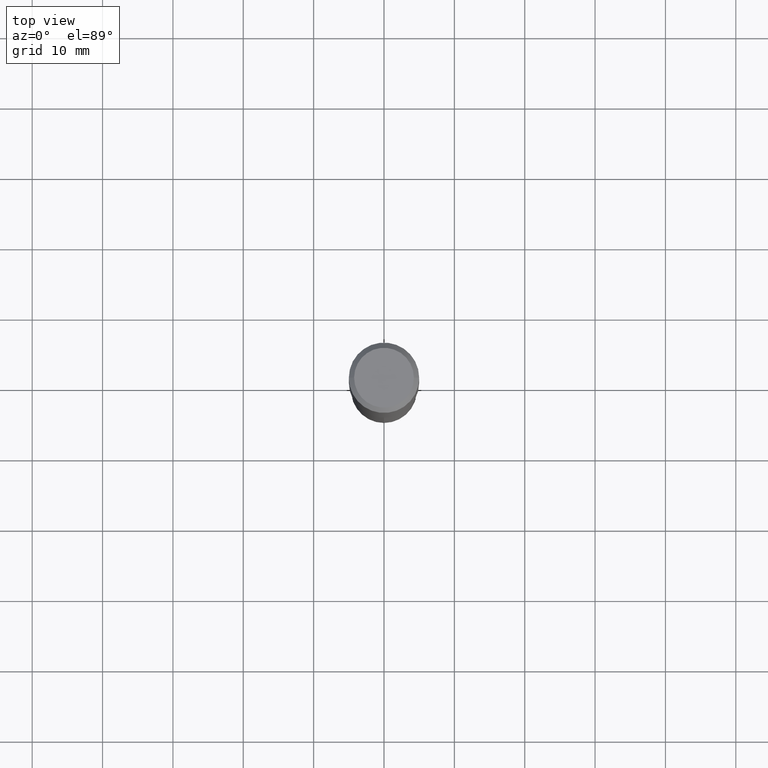
[diagram: clean part render]
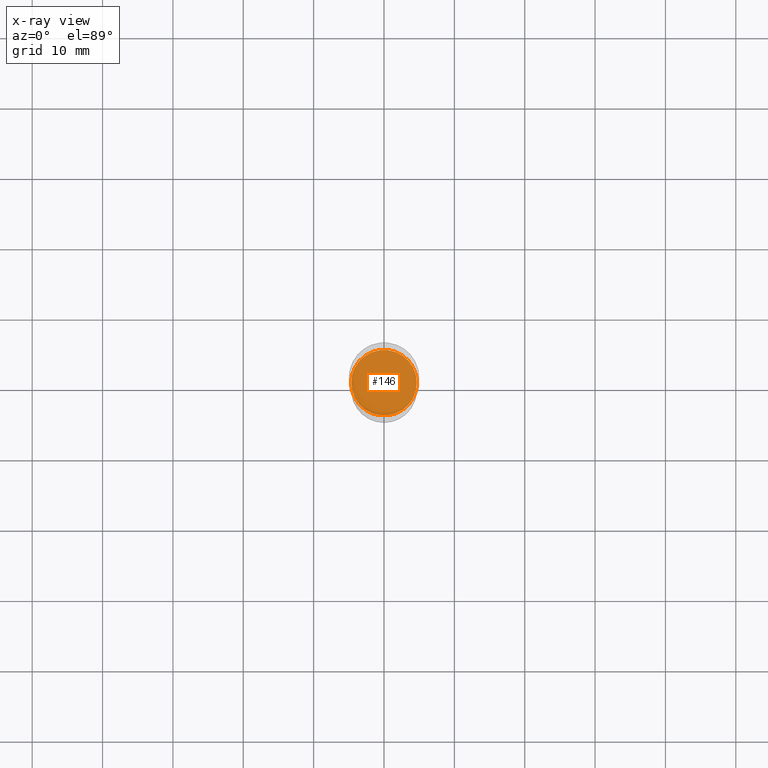
[diagram: x-ray — body ghosted, one internal face saturated and labeled with its STEP entity id]
A machine part, top view, then the same camera in x-ray: the body is ghosted and one INTERNAL B-rep face — a face not visible from any outside direction — is saturated and labeled: STEP entity #146.
In plain terms, the highlighted planar face has unit normal (-0, 0, 1).
Its self-contained STEP definition (entity closure, byte-faithful):
#7 = EDGE_CURVE ( 'NONE', #193, #320, #487, .T. ) ;
#17 = EDGE_LOOP ( 'NONE', ( #84, #119 ) ) ;
#19 = CARTESIAN_POINT ( 'NONE',  ( 4.043338124146504977E-29, -5.772815245643255982E-15, -1.653399999999999981 ) ) ;
#30 = DIRECTION ( 'NONE',  ( 1.000000000000000000, -6.982962677686265922E-15, 4.876176775795935793E-29 ) ) ;
#60 = EDGE_CURVE ( 'NONE', #320, #193, #381, .T. ) ;
#84 = ORIENTED_EDGE ( 'NONE', *, *, #60, .F. ) ;
#106 = CARTESIAN_POINT ( 'NONE',  ( -0.1834999999999999964, -4.466320098349360965E-15, -1.653399999999999981 ) ) ;
#119 = ORIENTED_EDGE ( 'NONE', *, *, #7, .F. ) ;
#142 = PLANE ( 'NONE',  #350 ) ;
#146 = ADVANCED_FACE ( 'NONE', ( #170 ), #142, .F. ) ;
#167 = DIRECTION ( 'NONE',  ( -2.445468806185136597E-29, 3.491481338843145583E-15, 1.000000000000000000 ) ) ;
#170 = FACE_OUTER_BOUND ( 'NONE', #17, .T. ) ;
#193 = VERTEX_POINT ( 'NONE', #106 ) ;
#209 = CARTESIAN_POINT ( 'NONE',  ( 2.324487579557410015E-29, -8.234307056392298500E-15, -1.653399999999999981 ) ) ;
#273 = CARTESIAN_POINT ( 'NONE',  ( 4.043338124146504977E-29, -5.772815245643255982E-15, -1.653399999999999981 ) ) ;
#282 = DIRECTION ( 'NONE',  ( 1.000000000000000000, -6.982962677686266711E-15, 0.000000000000000000 ) ) ;
#320 = VERTEX_POINT ( 'NONE', #341 ) ;
#341 = CARTESIAN_POINT ( 'NONE',  ( 0.1834999999999999964, -7.054188896998686144E-15, -1.653399999999999981 ) ) ;
#350 = AXIS2_PLACEMENT_3D ( 'NONE', #209, #490, #30 ) ;
#381 = CIRCLE ( 'NONE', #479, 0.1834999999999999964 ) ;
#426 = AXIS2_PLACEMENT_3D ( 'NONE', #19, #437, #282 ) ;
#437 = DIRECTION ( 'NONE',  ( -2.445468806185136597E-29, 3.491481338843145583E-15, 1.000000000000000000 ) ) ;
#472 = DIRECTION ( 'NONE',  ( 1.000000000000000000, -6.982962677686266711E-15, 0.000000000000000000 ) ) ;
#479 = AXIS2_PLACEMENT_3D ( 'NONE', #273, #167, #472 ) ;
#487 = CIRCLE ( 'NONE', #426, 0.1834999999999999964 ) ;
#490 = DIRECTION ( 'NONE',  ( -2.438088387897960049E-29, 3.491481338843145188E-15, 1.000000000000000000 ) ) ;